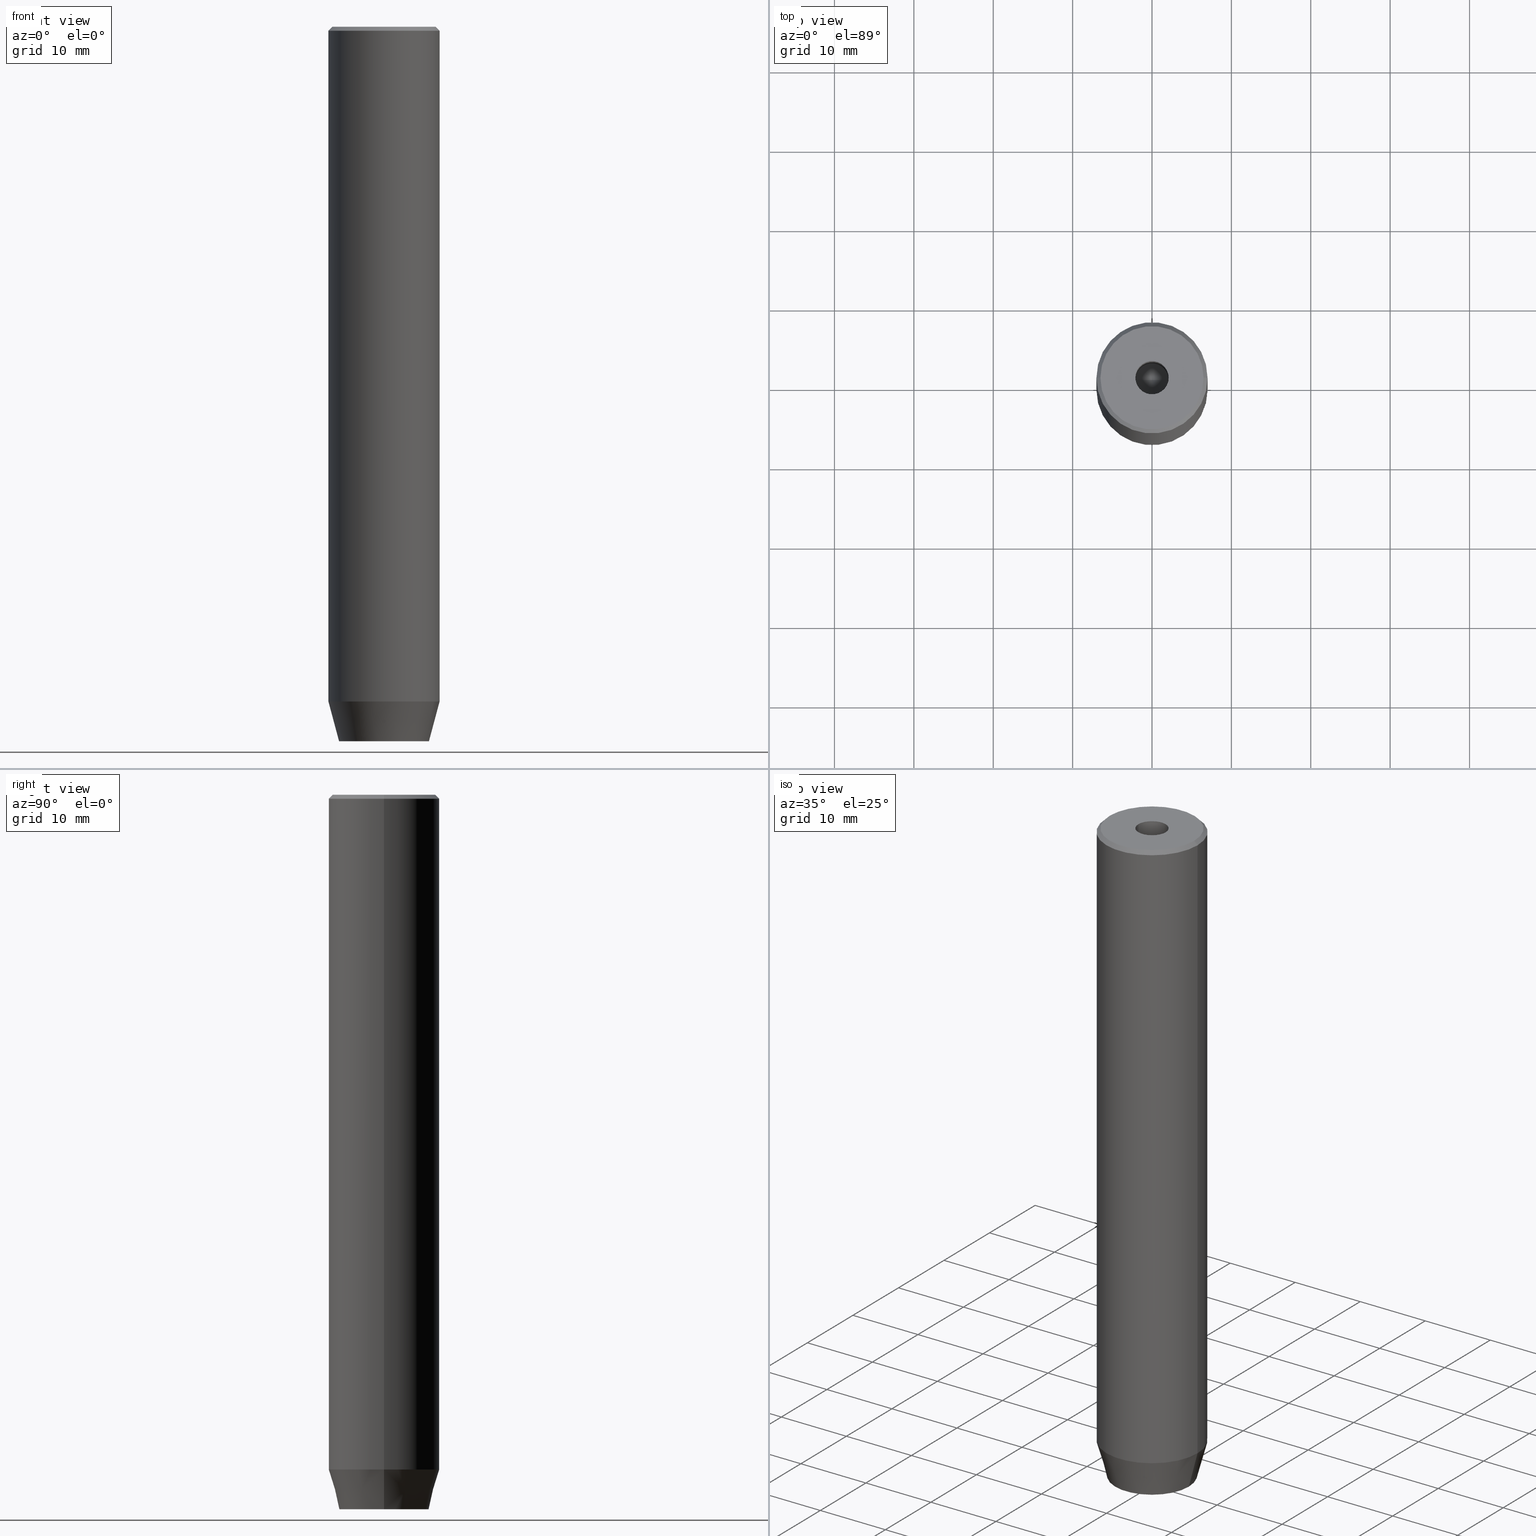
[diagram: canonical four-view strip — front | top / right | iso, engineering-drawing reading convention]
A machine part, canonical four-view strip (front | top / right | iso — engineering-drawing reading convention). The complete STEP part file that produces these views, byte-faithful:
ISO-10303-21;
HEADER;
FILE_DESCRIPTION (( 'STEP AP203' ),
    '1' );
FILE_NAME ('f0c6.STEP',
    '2024-01-02T21:53:27',
    ( '' ),
    ( '' ),
    'SwSTEP 2.0',
    'SolidWorks 2019',
    '' );
FILE_SCHEMA (( 'CONFIG_CONTROL_DESIGN' ));
ENDSEC;

DATA;
#1 = DIRECTION ( 'NONE',  ( -0.000000000000000000, -0.000000000000000000, 1.000000000000000000 ) ) ;
#2 = CALENDAR_DATE ( 2024, 2, 1 ) ;
#3 = CONICAL_SURFACE ( 'NONE', #431, 7.000000000000000000, 0.2617993877991499074 ) ;
#4 = LINE ( 'NONE', #284, #435 ) ;
#5 = ORIENTED_EDGE ( 'NONE', *, *, #337, .T. ) ;
#6 = DIRECTION ( 'NONE',  ( 1.000000000000000000, 0.000000000000000000, 0.000000000000000000 ) ) ;
#7 = EDGE_CURVE ( 'NONE', #307, #350, #265, .T. ) ;
#8 = DIRECTION ( 'NONE',  ( -0.000000000000000000, -0.000000000000000000, 1.000000000000000000 ) ) ;
#9 = FACE_OUTER_BOUND ( 'NONE', #238, .T. ) ;
#10 = CARTESIAN_POINT ( 'NONE',  ( 0.000000000000000000, 0.000000000000000000, -84.99999999999998579 ) ) ;
#11 = AXIS2_PLACEMENT_3D ( 'NONE', #229, #289, #6 ) ;
#12 = LOCAL_TIME ( 22, 53, 27.00000000000000000, #140 ) ;
#13 = EDGE_CURVE ( 'NONE', #433, #223, #358, .T. ) ;
#14 = ORIENTED_EDGE ( 'NONE', *, *, #274, .F. ) ;
#15 = EDGE_CURVE ( 'NONE', #526, #311, #515, .T. ) ;
#16 = PLANE ( 'NONE',  #305 ) ;
#17 = VECTOR ( 'NONE', #382, 1000.000000000000000 ) ;
#18 = CONICAL_SURFACE ( 'NONE', #222, 2.099999999999996980, 1.029744258676652535 ) ;
#19 = ORIENTED_EDGE ( 'NONE', *, *, #135, .F. ) ;
#20 = LINE ( 'NONE', #391, #148 ) ;
#21 = PRODUCT_DEFINITION_SHAPE ( 'NONE', 'NONE',  #398 ) ;
#22 = DIRECTION ( 'NONE',  ( 1.000000000000000000, 0.000000000000000000, 0.000000000000000000 ) ) ;
#23 = ADVANCED_FACE ( 'NONE', ( #439, #71 ), #253, .T. ) ;
#24 = CARTESIAN_POINT ( 'NONE',  ( 0.000000000000000000, 0.000000000000000000, 0.000000000000000000 ) ) ;
#25 = EDGE_LOOP ( 'NONE', ( #160, #475, #179, #199 ) ) ;
#26 = CARTESIAN_POINT ( 'NONE',  ( -1.084202172485504434E-16, 2.886751345948129543, -87.20000000000000284 ) ) ;
#27 = AXIS2_PLACEMENT_3D ( 'NONE', #400, #483, #427 ) ;
#28 = VERTEX_POINT ( 'NONE', #460 ) ;
#29 = VECTOR ( 'NONE', #109, 1000.000000000000114 ) ;
#30 = CARTESIAN_POINT ( 'NONE',  ( 7.000000000000000000, 0.000000000000000000, -84.99999999999998579 ) ) ;
#31 = ADVANCED_FACE ( 'NONE', ( #146 ), #3, .T. ) ;
#32 = COORDINATED_UNIVERSAL_TIME_OFFSET ( 1, 0, .AHEAD. ) ;
#33 = DIRECTION ( 'NONE',  ( -0.5000000000000001110, 0.8660254037844385966, 0.000000000000000000 ) ) ;
#34 = ORIENTED_EDGE ( 'NONE', *, *, #493, .F. ) ;
#35 = CC_DESIGN_PERSON_AND_ORGANIZATION_ASSIGNMENT ( #322, #88, ( #132 ) ) ;
#36 = DIRECTION ( 'NONE',  ( -0.4999999999999998890, -0.8660254037844387076, 0.000000000000000000 ) ) ;
#37 = VERTEX_POINT ( 'NONE', #469 ) ;
#38 = LINE ( 'NONE', #278, #543 ) ;
#39 = AXIS2_PLACEMENT_3D ( 'NONE', #510, #381, #46 ) ;
#40 = EDGE_CURVE ( 'NONE', #448, #223, #80, .T. ) ;
#41 =( GEOMETRIC_REPRESENTATION_CONTEXT ( 3 ) GLOBAL_UNCERTAINTY_ASSIGNED_CONTEXT ( ( #519 ) ) GLOBAL_UNIT_ASSIGNED_CONTEXT ( ( #386, #191, #142 ) ) REPRESENTATION_CONTEXT ( 'NONE', 'WORKASPACE' ) );
#42 = CARTESIAN_POINT ( 'NONE',  ( -7.000000000000000000, 8.572527594031473190E-16, -84.99999999999998579 ) ) ;
#43 = EDGE_LOOP ( 'NONE', ( #485, #512, #484, #131 ) ) ;
#44 = APPROVAL ( #45, 'NEUR�EN�' ) ;
#45 = APPROVAL_STATUS ( 'not_yet_approved' ) ;
#46 = DIRECTION ( 'NONE',  ( 1.000000000000000000, 0.000000000000000000, 0.000000000000000000 ) ) ;
#47 = DIRECTION ( 'NONE',  ( 1.000000000000000000, 0.000000000000000000, 0.000000000000000000 ) ) ;
#48 = DIRECTION ( 'NONE',  ( 0.000000000000000000, 0.000000000000000000, -1.000000000000000000 ) ) ;
#49 = CARTESIAN_POINT ( 'NONE',  ( 0.000000000000000000, 0.000000000000000000, -15.00000000000000000 ) ) ;
#50 = CIRCLE ( 'NONE', #525, 2.099999999999996980 ) ;
#51 = CYLINDRICAL_SURFACE ( 'NONE', #11, 2.099999999999997868 ) ;
#52 = SHAPE_DEFINITION_REPRESENTATION ( #21, #407 ) ;
#53 = CARTESIAN_POINT ( 'NONE',  ( -2.500000000000000444, 0.000000000000000000, -90.00000000000000000 ) ) ;
#54 = ADVANCED_FACE ( 'NONE', ( #465 ), #64, .T. ) ;
#55 = DIRECTION ( 'NONE',  ( -1.000000000000000000, 0.000000000000000000, 0.000000000000000000 ) ) ;
#56 = FACE_OUTER_BOUND ( 'NONE', #25, .T. ) ;
#57 = DIRECTION ( 'NONE',  ( 0.000000000000000000, 0.000000000000000000, -1.000000000000000000 ) ) ;
#58 = DIRECTION ( 'NONE',  ( -0.000000000000000000, -0.000000000000000000, 1.000000000000000000 ) ) ;
#59 = LINE ( 'NONE', #556, #29 ) ;
#60 = ORIENTED_EDGE ( 'NONE', *, *, #539, .F. ) ;
#61 = CARTESIAN_POINT ( 'NONE',  ( 0.000000000000000000, -2.886751345948128211, -90.00000000000000000 ) ) ;
#62 = EDGE_CURVE ( 'NONE', #262, #153, #401, .T. ) ;
#63 = COORDINATED_UNIVERSAL_TIME_OFFSET ( 1, 0, .AHEAD. ) ;
#64 = CONICAL_SURFACE ( 'NONE', #348, 6.499999999999992006, 0.7853981633974380649 ) ;
#65 = LINE ( 'NONE', #53, #294 ) ;
#66 = EDGE_LOOP ( 'NONE', ( #34, #285 ) ) ;
#67 = ORIENTED_EDGE ( 'NONE', *, *, #7, .F. ) ;
#68 = CARTESIAN_POINT ( 'NONE',  ( -3.982994051648894933E-15, 0.000000000000000000, -16.26180729995787644 ) ) ;
#69 = ORIENTED_EDGE ( 'NONE', *, *, #499, .F. ) ;
#70 = LINE ( 'NONE', #299, #174 ) ;
#71 = FACE_OUTER_BOUND ( 'NONE', #585, .T. ) ;
#72 = EDGE_CURVE ( 'NONE', #411, #209, #231, .T. ) ;
#73 = EDGE_LOOP ( 'NONE', ( #201, #482, #67, #576 ) ) ;
#74 = CYLINDRICAL_SURFACE ( 'NONE', #508, 7.000000000000000000 ) ;
#75 = CC_DESIGN_PERSON_AND_ORGANIZATION_ASSIGNMENT ( #224, #373, ( #132 ) ) ;
#76 = ORIENTED_EDGE ( 'NONE', *, *, #403, .F. ) ;
#77 = DIRECTION ( 'NONE',  ( -0.000000000000000000, 0.000000000000000000, -1.000000000000000000 ) ) ;
#78 = EDGE_CURVE ( 'NONE', #136, #258, #198, .T. ) ;
#79 = CARTESIAN_POINT ( 'NONE',  ( 0.000000000000000000, 0.000000000000000000, -1.990051048614449116E-16 ) ) ;
#80 = CIRCLE ( 'NONE', #251, 7.000000000000000000 ) ;
#81 = ORIENTED_EDGE ( 'NONE', *, *, #143, .T. ) ;
#82 = ORIENTED_EDGE ( 'NONE', *, *, #230, .F. ) ;
#83 = VERTEX_POINT ( 'NONE', #441 ) ;
#84 = CARTESIAN_POINT ( 'NONE',  ( 2.500000000000000000, -1.443375672974064106, -90.00000000000000000 ) ) ;
#85 = COORDINATED_UNIVERSAL_TIME_OFFSET ( 1, 0, .AHEAD. ) ;
#86 = ADVANCED_FACE ( 'NONE', ( #560 ), #74, .T. ) ;
#87 = ORIENTED_EDGE ( 'NONE', *, *, #78, .F. ) ;
#88 = PERSON_AND_ORGANIZATION_ROLE ( 'creator' ) ;
#89 = CARTESIAN_POINT ( 'NONE',  ( -1.250000000000000444, 2.165063509461097269, -87.20000000000000284 ) ) ;
#90 = LINE ( 'NONE', #538, #102 ) ;
#91 = EDGE_CURVE ( 'NONE', #413, #83, #397, .T. ) ;
#92 = VECTOR ( 'NONE', #95, 1000.000000000000000 ) ;
#93 = CARTESIAN_POINT ( 'NONE',  ( -2.099999999999996980, 2.571758278209438013E-16, -15.00000000000000000 ) ) ;
#94 = CARTESIAN_POINT ( 'NONE',  ( 1.249999999999999778, -2.165063509461096380, -87.20000000000000284 ) ) ;
#95 = DIRECTION ( 'NONE',  ( -0.000000000000000000, -0.000000000000000000, -1.000000000000000000 ) ) ;
#96 = VERTEX_POINT ( 'NONE', #61 ) ;
#97 = CARTESIAN_POINT ( 'NONE',  ( 0.000000000000000000, 0.000000000000000000, -84.99999999999998579 ) ) ;
#98 = DIRECTION ( 'NONE',  ( -0.000000000000000000, -0.000000000000000000, 1.000000000000000000 ) ) ;
#99 = EDGE_LOOP ( 'NONE', ( #81, #177, #249, #207 ) ) ;
#100 = CARTESIAN_POINT ( 'NONE',  ( 5.660254037844382857, 0.000000000000000000, -90.00000000000000000 ) ) ;
#101 = CARTESIAN_POINT ( 'NONE',  ( 0.000000000000000000, 0.000000000000000000, -0.5000000000000186517 ) ) ;
#102 = VECTOR ( 'NONE', #272, 1000.000000000000000 ) ;
#103 = DIRECTION ( 'NONE',  ( -0.000000000000000000, -0.000000000000000000, -1.000000000000000000 ) ) ;
#104 = CARTESIAN_POINT ( 'NONE',  ( 0.000000000000000000, 0.000000000000000000, -84.99999999999998579 ) ) ;
#105 = SECURITY_CLASSIFICATION_LEVEL ( 'unclassified' ) ;
#106 = FACE_OUTER_BOUND ( 'NONE', #173, .T. ) ;
#107 = DIRECTION ( 'NONE',  ( 1.000000000000000000, 0.000000000000000000, 0.000000000000000000 ) ) ;
#108 = ORIENTED_EDGE ( 'NONE', *, *, #337, .F. ) ;
#109 = DIRECTION ( 'NONE',  ( -0.8660254037844387076, 0.4999999999999998890, 0.000000000000000000 ) ) ;
#110 = MECHANICAL_CONTEXT ( 'NONE', #182, 'mechanical' ) ;
#111 = ORIENTED_EDGE ( 'NONE', *, *, #91, .T. ) ;
#112 = CIRCLE ( 'NONE', #365, 2.099999999999998757 ) ;
#113 = CONICAL_SURFACE ( 'NONE', #446, 6.499999999999992006, 0.7853981633974380649 ) ;
#114 = PERSON ( 'NEUR�EN�', 'NEUR�EN�', 'NEUR�EN�', ('NEUR�EN�'), ('NEUR�EN�'), ('NEUR�EN�') ) ;
#115 = ORIENTED_EDGE ( 'NONE', *, *, #354, .T. ) ;
#116 = CARTESIAN_POINT ( 'NONE',  ( 7.000000000000000000, 0.000000000000000000, -84.99999999999998579 ) ) ;
#117 = EDGE_CURVE ( 'NONE', #153, #262, #420, .T. ) ;
#118 = DIRECTION ( 'NONE',  ( -0.7071067811865402453, 0.000000000000000000, -0.7071067811865549002 ) ) ;
#119 = DIRECTION ( 'NONE',  ( 0.000000000000000000, 0.000000000000000000, -1.000000000000000000 ) ) ;
#120 = ORIENTED_EDGE ( 'NONE', *, *, #429, .F. ) ;
#121 = DIRECTION ( 'NONE',  ( 0.000000000000000000, -1.000000000000000000, 0.000000000000000000 ) ) ;
#122 = CONICAL_SURFACE ( 'NONE', #139, 2.099999999999996980, 1.029744258676652535 ) ;
#123 = VECTOR ( 'NONE', #574, 1000.000000000000114 ) ;
#124 = DIRECTION ( 'NONE',  ( 0.000000000000000000, 0.000000000000000000, -1.000000000000000000 ) ) ;
#125 = CARTESIAN_POINT ( 'NONE',  ( -2.500000000000000444, 0.000000000000000000, -87.20000000000000284 ) ) ;
#126 = DESIGN_CONTEXT ( 'detailed design', #377, 'design' ) ;
#127 = DIRECTION ( 'NONE',  ( -0.000000000000000000, -0.000000000000000000, 1.000000000000000000 ) ) ;
#128 = ORIENTED_EDGE ( 'NONE', *, *, #15, .F. ) ;
#129 = CARTESIAN_POINT ( 'NONE',  ( -2.500000000000000444, 1.443375672974064772, -87.20000000000000284 ) ) ;
#130 = CIRCLE ( 'NONE', #561, 6.499999999999992006 ) ;
#131 = ORIENTED_EDGE ( 'NONE', *, *, #40, .F. ) ;
#132 = PRODUCT_DEFINITION_FORMATION_WITH_SPECIFIED_SOURCE ( 'LIBOVOLN�', '', #518, .NOT_KNOWN. ) ;
#133 = CARTESIAN_POINT ( 'NONE',  ( 2.500000000000000000, -1.443375672974064106, -87.20000000000000284 ) ) ;
#134 = APPROVAL_DATE_TIME ( #533, #557 ) ;
#135 = EDGE_CURVE ( 'NONE', #310, #433, #568, .T. ) ;
#136 = VERTEX_POINT ( 'NONE', #68 ) ;
#137 = DIRECTION ( 'NONE',  ( -0.8660254037844385966, 0.5000000000000001110, 0.000000000000000000 ) ) ;
#138 = APPROVAL_STATUS ( 'not_yet_approved' ) ;
#139 = AXIS2_PLACEMENT_3D ( 'NONE', #49, #233, #419 ) ;
#140 = COORDINATED_UNIVERSAL_TIME_OFFSET ( 1, 0, .AHEAD. ) ;
#141 = DIRECTION ( 'NONE',  ( -0.000000000000000000, -0.000000000000000000, -1.000000000000000000 ) ) ;
#142 =( NAMED_UNIT ( * ) SI_UNIT ( $, .STERADIAN. ) SOLID_ANGLE_UNIT ( ) );
#143 = EDGE_CURVE ( 'NONE', #368, #96, #20, .T. ) ;
#144 = DIRECTION ( 'NONE',  ( 1.000000000000000000, 0.000000000000000000, 0.000000000000000000 ) ) ;
#145 = ORIENTED_EDGE ( 'NONE', *, *, #62, .T. ) ;
#146 = FACE_OUTER_BOUND ( 'NONE', #396, .T. ) ;
#147 = DIRECTION ( 'NONE',  ( -0.000000000000000000, -0.000000000000000000, 1.000000000000000000 ) ) ;
#148 = VECTOR ( 'NONE', #564, 999.9999999999998863 ) ;
#149 = PERSON_AND_ORGANIZATION ( #114, #562 ) ;
#150 = AXIS2_PLACEMENT_3D ( 'NONE', #268, #455, #137 ) ;
#151 = LINE ( 'NONE', #93, #17 ) ;
#152 = EDGE_CURVE ( 'NONE', #209, #302, #161, .T. ) ;
#153 = VERTEX_POINT ( 'NONE', #116 ) ;
#154 = CARTESIAN_POINT ( 'NONE',  ( 2.500000000000000000, 1.443375672974064328, -90.00000000000000000 ) ) ;
#155 = EDGE_CURVE ( 'NONE', #352, #169, #70, .T. ) ;
#156 = ORIENTED_EDGE ( 'NONE', *, *, #218, .F. ) ;
#157 = CARTESIAN_POINT ( 'NONE',  ( 0.000000000000000000, 0.000000000000000000, 0.000000000000000000 ) ) ;
#158 = ORIENTED_EDGE ( 'NONE', *, *, #552, .F. ) ;
#159 = DIRECTION ( 'NONE',  ( 0.8571673007021113344, 0.000000000000000000, 0.5150380749100558209 ) ) ;
#160 = ORIENTED_EDGE ( 'NONE', *, *, #208, .F. ) ;
#161 = LINE ( 'NONE', #351, #486 ) ;
#162 = ADVANCED_FACE ( 'NONE', ( #393 ), #250, .F. ) ;
#163 = ORIENTED_EDGE ( 'NONE', *, *, #7, .T. ) ;
#164 = CC_DESIGN_PERSON_AND_ORGANIZATION_ASSIGNMENT ( #500, #416, ( #398 ) ) ;
#165 = ORIENTED_EDGE ( 'NONE', *, *, #451, .T. ) ;
#166 = ADVANCED_FACE ( 'NONE', ( #259 ), #443, .F. ) ;
#167 = CC_DESIGN_APPROVAL ( #557, ( #132 ) ) ;
#168 = CARTESIAN_POINT ( 'NONE',  ( 2.099999999999997868, 0.000000000000000000, 0.000000000000000000 ) ) ;
#169 = VERTEX_POINT ( 'NONE', #26 ) ;
#170 = DIRECTION ( 'NONE',  ( 1.000000000000000000, 0.000000000000000000, -0.000000000000000000 ) ) ;
#171 = CYLINDRICAL_SURFACE ( 'NONE', #463, 7.000000000000000000 ) ;
#172 = FACE_OUTER_BOUND ( 'NONE', #99, .T. ) ;
#173 = EDGE_LOOP ( 'NONE', ( #353, #255, #165, #520 ) ) ;
#174 = VECTOR ( 'NONE', #438, 1000.000000000000000 ) ;
#175 = DIRECTION ( 'NONE',  ( 0.000000000000000000, 1.000000000000000000, 0.000000000000000000 ) ) ;
#176 = VECTOR ( 'NONE', #467, 1000.000000000000000 ) ;
#177 = ORIENTED_EDGE ( 'NONE', *, *, #394, .F. ) ;
#178 = ADVANCED_FACE ( 'NONE', ( #308 ), #210, .T. ) ;
#179 = ORIENTED_EDGE ( 'NONE', *, *, #254, .T. ) ;
#180 = PLANE ( 'NONE',  #580 ) ;
#181 = ORIENTED_EDGE ( 'NONE', *, *, #274, .T. ) ;
#182 = APPLICATION_CONTEXT ( 'configuration controlled 3d designs of mechanical parts and assemblies' ) ;
#183 = CARTESIAN_POINT ( 'NONE',  ( 6.499999999999992006, 7.960204194457785616E-16, 0.000000000000000000 ) ) ;
#184 = CARTESIAN_POINT ( 'NONE',  ( -2.500000000000000444, 1.443375672974064772, -90.00000000000000000 ) ) ;
#185 = AXIS2_PLACEMENT_3D ( 'NONE', #300, #477, #355 ) ;
#186 = VECTOR ( 'NONE', #290, 1000.000000000000000 ) ;
#187 = CARTESIAN_POINT ( 'NONE',  ( -2.500000000000000444, -1.443375672974064328, -90.00000000000000000 ) ) ;
#188 = PRODUCT_RELATED_PRODUCT_CATEGORY ( 'detail', '', ( #518 ) ) ;
#189 = CARTESIAN_POINT ( 'NONE',  ( 0.000000000000000000, 0.000000000000000000, 0.000000000000000000 ) ) ;
#190 = CARTESIAN_POINT ( 'NONE',  ( 0.000000000000000000, 0.000000000000000000, 0.000000000000000000 ) ) ;
#191 =( NAMED_UNIT ( * ) PLANE_ANGLE_UNIT ( ) SI_UNIT ( $, .RADIAN. ) );
#192 = DATE_TIME_ROLE ( 'classification_date' ) ;
#193 = LINE ( 'NONE', #430, #376 ) ;
#194 = LINE ( 'NONE', #464, #176 ) ;
#195 = ORIENTED_EDGE ( 'NONE', *, *, #117, .F. ) ;
#196 = CIRCLE ( 'NONE', #437, 2.099999999999996980 ) ;
#197 = CARTESIAN_POINT ( 'NONE',  ( 0.000000000000000000, 2.886751345948129099, -90.00000000000000000 ) ) ;
#198 = LINE ( 'NONE', #296, #541 ) ;
#199 = ORIENTED_EDGE ( 'NONE', *, *, #451, .F. ) ;
#200 = EDGE_CURVE ( 'NONE', #433, #310, #130, .T. ) ;
#201 = ORIENTED_EDGE ( 'NONE', *, *, #403, .T. ) ;
#202 = DIRECTION ( 'NONE',  ( -0.000000000000000000, -0.000000000000000000, 1.000000000000000000 ) ) ;
#203 = AXIS2_PLACEMENT_3D ( 'NONE', #10, #379, #501 ) ;
#204 = ADVANCED_FACE ( 'NONE', ( #9 ), #122, .F. ) ;
#205 = ORIENTED_EDGE ( 'NONE', *, *, #135, .T. ) ;
#206 = DIRECTION ( 'NONE',  ( 0.8660254037844385966, 0.5000000000000001110, 0.000000000000000000 ) ) ;
#207 = ORIENTED_EDGE ( 'NONE', *, *, #532, .T. ) ;
#208 = EDGE_CURVE ( 'NONE', #37, #258, #50, .T. ) ;
#209 = VERTEX_POINT ( 'NONE', #197 ) ;
#210 = PLANE ( 'NONE',  #27 ) ;
#211 = CC_DESIGN_DATE_AND_TIME_ASSIGNMENT ( #581, #586, ( #398 ) ) ;
#212 = AXIS2_PLACEMENT_3D ( 'NONE', #97, #8, #414 ) ;
#213 = CIRCLE ( 'NONE', #237, 2.099999999999998757 ) ;
#214 = ORIENTED_EDGE ( 'NONE', *, *, #552, .T. ) ;
#215 = CARTESIAN_POINT ( 'NONE',  ( -2.099999999999997868, 2.571758278209438999E-16, 0.000000000000000000 ) ) ;
#216 = ORIENTED_EDGE ( 'NONE', *, *, #246, .T. ) ;
#217 = DIRECTION ( 'NONE',  ( 0.8660254037844387076, -0.4999999999999998890, 0.000000000000000000 ) ) ;
#218 = EDGE_CURVE ( 'NONE', #136, #37, #151, .T. ) ;
#219 = DIRECTION ( 'NONE',  ( 0.2588190451025211836, 0.000000000000000000, 0.9659258262890680902 ) ) ;
#220 = CLOSED_SHELL ( 'NONE', ( #315, #468, #54, #264, #86, #23, #293, #422, #31, #444, #370, #166, #481, #456, #162, #385, #178, #204, #325 ) ) ;
#221 = DIRECTION ( 'NONE',  ( -0.000000000000000000, -0.000000000000000000, 1.000000000000000000 ) ) ;
#222 = AXIS2_PLACEMENT_3D ( 'NONE', #534, #1, #494 ) ;
#223 = VERTEX_POINT ( 'NONE', #240 ) ;
#224 = PERSON_AND_ORGANIZATION ( #114, #562 ) ;
#225 = LINE ( 'NONE', #328, #92 ) ;
#226 = EDGE_LOOP ( 'NONE', ( #572, #459, #76, #330, #158, #471 ) ) ;
#227 = CARTESIAN_POINT ( 'NONE',  ( 0.000000000000000000, 0.000000000000000000, 0.000000000000000000 ) ) ;
#228 = APPROVAL_ROLE ( '' ) ;
#229 = CARTESIAN_POINT ( 'NONE',  ( 0.000000000000000000, 0.000000000000000000, 0.000000000000000000 ) ) ;
#230 = EDGE_CURVE ( 'NONE', #413, #302, #193, .T. ) ;
#231 = LINE ( 'NONE', #523, #445 ) ;
#232 = DIRECTION ( 'NONE',  ( 1.000000000000000000, 0.000000000000000000, 0.000000000000000000 ) ) ;
#233 = DIRECTION ( 'NONE',  ( -0.000000000000000000, -0.000000000000000000, 1.000000000000000000 ) ) ;
#234 = DATE_AND_TIME ( #462, #498 ) ;
#235 = PERSON_AND_ORGANIZATION ( #114, #562 ) ;
#236 = AXIS2_PLACEMENT_3D ( 'NONE', #303, #480, #256 ) ;
#237 = AXIS2_PLACEMENT_3D ( 'NONE', #79, #578, #47 ) ;
#238 = EDGE_LOOP ( 'NONE', ( #156, #389, #406 ) ) ;
#239 = LINE ( 'NONE', #550, #271 ) ;
#240 = CARTESIAN_POINT ( 'NONE',  ( -7.000000000000000000, 8.572527594031473190E-16, -0.5000000000000186517 ) ) ;
#241 = EDGE_LOOP ( 'NONE', ( #214, #318, #579, #452 ) ) ;
#242 = VECTOR ( 'NONE', #121, 1000.000000000000000 ) ;
#243 = APPROVAL ( #138, 'NEUR�EN�' ) ;
#244 = CC_DESIGN_APPROVAL ( #243, ( #252 ) ) ;
#245 = ORIENTED_EDGE ( 'NONE', *, *, #559, .T. ) ;
#246 = EDGE_CURVE ( 'NONE', #153, #448, #4, .T. ) ;
#247 = VERTEX_POINT ( 'NONE', #187 ) ;
#248 = CC_DESIGN_PERSON_AND_ORGANIZATION_ASSIGNMENT ( #149, #506, ( #252 ) ) ;
#249 = ORIENTED_EDGE ( 'NONE', *, *, #346, .F. ) ;
#250 = PLANE ( 'NONE',  #530 ) ;
#251 = AXIS2_PLACEMENT_3D ( 'NONE', #101, #286, #425 ) ;
#252 = SECURITY_CLASSIFICATION ( '', '', #105 ) ;
#253 = PLANE ( 'NONE',  #338 ) ;
#254 = EDGE_CURVE ( 'NONE', #399, #28, #112, .T. ) ;
#255 = ORIENTED_EDGE ( 'NONE', *, *, #434, .F. ) ;
#256 = DIRECTION ( 'NONE',  ( 1.000000000000000000, 0.000000000000000000, 0.000000000000000000 ) ) ;
#257 = ORIENTED_EDGE ( 'NONE', *, *, #72, .T. ) ;
#258 = VERTEX_POINT ( 'NONE', #375 ) ;
#259 = FACE_OUTER_BOUND ( 'NONE', #387, .T. ) ;
#260 = DIRECTION ( 'NONE',  ( 1.000000000000000000, 0.000000000000000000, 0.000000000000000000 ) ) ;
#261 = ORIENTED_EDGE ( 'NONE', *, *, #499, .T. ) ;
#262 = VERTEX_POINT ( 'NONE', #503 ) ;
#263 = FACE_OUTER_BOUND ( 'NONE', #404, .T. ) ;
#264 = ADVANCED_FACE ( 'NONE', ( #417 ), #453, .T. ) ;
#265 = LINE ( 'NONE', #449, #316 ) ;
#266 = DIRECTION ( 'NONE',  ( 0.8660254037844385966, 0.4999999999999999445, 0.000000000000000000 ) ) ;
#267 = ORIENTED_EDGE ( 'NONE', *, *, #208, .T. ) ;
#268 = CARTESIAN_POINT ( 'NONE',  ( 1.250000000000000222, 2.165063509461096825, -87.20000000000000284 ) ) ;
#269 = CC_DESIGN_PERSON_AND_ORGANIZATION_ASSIGNMENT ( #388, #282, ( #518 ) ) ;
#270 = CARTESIAN_POINT ( 'NONE',  ( -2.500000000000000444, 1.443375672974064772, -87.20000000000000284 ) ) ;
#271 = VECTOR ( 'NONE', #58, 1000.000000000000000 ) ;
#272 = DIRECTION ( 'NONE',  ( 0.000000000000000000, -1.000000000000000000, 0.000000000000000000 ) ) ;
#273 = LOCAL_TIME ( 22, 53, 27.00000000000000000, #63 ) ;
#274 = EDGE_CURVE ( 'NONE', #169, #209, #336, .T. ) ;
#275 = APPROVAL_DATE_TIME ( #536, #44 ) ;
#276 = CARTESIAN_POINT ( 'NONE',  ( 0.000000000000000000, -2.886751345948128211, -87.20000000000000284 ) ) ;
#277 = DIRECTION ( 'NONE',  ( -0.000000000000000000, -0.000000000000000000, 1.000000000000000000 ) ) ;
#278 = CARTESIAN_POINT ( 'NONE',  ( -2.500000000000000444, 0.000000000000000000, -87.20000000000000284 ) ) ;
#279 = EDGE_LOOP ( 'NONE', ( #332, #364, #111, #298, #163, #283 ) ) ;
#280 = PERSON_AND_ORGANIZATION ( #114, #562 ) ;
#281 = PLANE ( 'NONE',  #327 ) ;
#282 = PERSON_AND_ORGANIZATION_ROLE ( 'design_owner' ) ;
#283 = ORIENTED_EDGE ( 'NONE', *, *, #517, .T. ) ;
#284 = CARTESIAN_POINT ( 'NONE',  ( 7.000000000000000000, 0.000000000000000000, 0.000000000000000000 ) ) ;
#285 = ORIENTED_EDGE ( 'NONE', *, *, #254, .F. ) ;
#286 = DIRECTION ( 'NONE',  ( 0.000000000000000000, 0.000000000000000000, -1.000000000000000000 ) ) ;
#287 = DATE_AND_TIME ( #2, #273 ) ;
#288 = DIRECTION ( 'NONE',  ( -0.000000000000000000, -0.000000000000000000, 1.000000000000000000 ) ) ;
#289 = DIRECTION ( 'NONE',  ( -0.000000000000000000, -0.000000000000000000, 1.000000000000000000 ) ) ;
#290 = DIRECTION ( 'NONE',  ( -0.000000000000000000, -0.000000000000000000, -1.000000000000000000 ) ) ;
#291 = ORIENTED_EDGE ( 'NONE', *, *, #380, .F. ) ;
#292 = VECTOR ( 'NONE', #118, 1000.000000000000114 ) ;
#293 = ADVANCED_FACE ( 'NONE', ( #551, #384 ), #281, .T. ) ;
#294 = VECTOR ( 'NONE', #421, 1000.000000000000000 ) ;
#295 = ORIENTED_EDGE ( 'NONE', *, *, #152, .T. ) ;
#296 = CARTESIAN_POINT ( 'NONE',  ( 2.099999999999996980, 0.000000000000000000, -15.00000000000000000 ) ) ;
#297 = DIRECTION ( 'NONE',  ( 0.5000000000000000000, -0.8660254037844387076, 0.000000000000000000 ) ) ;
#298 = ORIENTED_EDGE ( 'NONE', *, *, #346, .T. ) ;
#299 = CARTESIAN_POINT ( 'NONE',  ( -1.250000000000000444, 2.165063509461097269, -87.20000000000000284 ) ) ;
#300 = CARTESIAN_POINT ( 'NONE',  ( 0.000000000000000000, 0.000000000000000000, -90.00000000000000000 ) ) ;
#301 = LINE ( 'NONE', #168, #454 ) ;
#302 = VERTEX_POINT ( 'NONE', #154 ) ;
#303 = CARTESIAN_POINT ( 'NONE',  ( 0.000000000000000000, 0.000000000000000000, -84.99999999999998579 ) ) ;
#304 = VECTOR ( 'NONE', #103, 1000.000000000000000 ) ;
#305 = AXIS2_PLACEMENT_3D ( 'NONE', #349, #297, #266 ) ;
#306 = DIRECTION ( 'NONE',  ( -1.000000000000000000, 0.000000000000000000, -0.000000000000000000 ) ) ;
#307 = VERTEX_POINT ( 'NONE', #276 ) ;
#308 = FACE_OUTER_BOUND ( 'NONE', #279, .T. ) ;
#309 = MANIFOLD_SOLID_BREP ( 'Vrt�k z�vitn�ku pro M5 z�vit1', #220 ) ;
#310 = VERTEX_POINT ( 'NONE', #587 ) ;
#311 = VERTEX_POINT ( 'NONE', #100 ) ;
#312 = DIRECTION ( 'NONE',  ( -0.8660254037844387076, -0.5000000000000001110, 0.000000000000000000 ) ) ;
#313 = CARTESIAN_POINT ( 'NONE',  ( -1.249999999999999556, -2.165063509461096825, -87.20000000000000284 ) ) ;
#314 = ORIENTED_EDGE ( 'NONE', *, *, #117, .T. ) ;
#315 = ADVANCED_FACE ( 'NONE', ( #56 ), #461, .F. ) ;
#316 = VECTOR ( 'NONE', #408, 1000.000000000000114 ) ;
#317 = APPROVAL_PERSON_ORGANIZATION ( #235, #44, #228 ) ;
#318 = ORIENTED_EDGE ( 'NONE', *, *, #532, .F. ) ;
#319 = CALENDAR_DATE ( 2024, 2, 1 ) ;
#320 = CARTESIAN_POINT ( 'NONE',  ( 0.000000000000000000, 0.000000000000000000, -90.00000000000000000 ) ) ;
#321 = ORIENTED_EDGE ( 'NONE', *, *, #40, .T. ) ;
#322 = PERSON_AND_ORGANIZATION ( #114, #562 ) ;
#323 = CARTESIAN_POINT ( 'NONE',  ( -2.500000000000000444, -1.443375672974064328, -87.20000000000000284 ) ) ;
#324 = DIRECTION ( 'NONE',  ( 1.000000000000000000, 0.000000000000000000, 0.000000000000000000 ) ) ;
#325 = ADVANCED_FACE ( 'NONE', ( #106 ), #51, .F. ) ;
#326 = ORIENTED_EDGE ( 'NONE', *, *, #218, .T. ) ;
#327 = AXIS2_PLACEMENT_3D ( 'NONE', #190, #344, #340 ) ;
#328 = CARTESIAN_POINT ( 'NONE',  ( -2.500000000000000444, -1.443375672974064328, -87.20000000000000284 ) ) ;
#329 = VECTOR ( 'NONE', #412, 1000.000000000000000 ) ;
#330 = ORIENTED_EDGE ( 'NONE', *, *, #143, .F. ) ;
#331 = DIRECTION ( 'NONE',  ( -0.000000000000000000, -0.000000000000000000, 1.000000000000000000 ) ) ;
#332 = ORIENTED_EDGE ( 'NONE', *, *, #155, .T. ) ;
#333 = DIRECTION ( 'NONE',  ( 1.000000000000000000, 0.000000000000000000, 0.000000000000000000 ) ) ;
#334 = EDGE_LOOP ( 'NONE', ( #347, #205 ) ) ;
#335 = DIRECTION ( 'NONE',  ( -0.000000000000000000, -0.000000000000000000, 1.000000000000000000 ) ) ;
#336 = LINE ( 'NONE', #548, #304 ) ;
#337 = EDGE_CURVE ( 'NONE', #262, #223, #239, .T. ) ;
#338 = AXIS2_PLACEMENT_3D ( 'NONE', #524, #124, #306 ) ;
#339 = CIRCLE ( 'NONE', #390, 5.660254037844382857 ) ;
#340 = DIRECTION ( 'NONE',  ( 1.000000000000000000, 0.000000000000000000, 0.000000000000000000 ) ) ;
#341 = EDGE_CURVE ( 'NONE', #310, #448, #507, .T. ) ;
#342 = CARTESIAN_POINT ( 'NONE',  ( 0.000000000000000000, 0.000000000000000000, 0.000000000000000000 ) ) ;
#343 = ORIENTED_EDGE ( 'NONE', *, *, #62, .F. ) ;
#344 = DIRECTION ( 'NONE',  ( 0.000000000000000000, -0.000000000000000000, 1.000000000000000000 ) ) ;
#345 = DIRECTION ( 'NONE',  ( 1.000000000000000000, 0.000000000000000000, 0.000000000000000000 ) ) ;
#346 = EDGE_CURVE ( 'NONE', #83, #307, #573, .T. ) ;
#347 = ORIENTED_EDGE ( 'NONE', *, *, #200, .T. ) ;
#348 = AXIS2_PLACEMENT_3D ( 'NONE', #227, #57, #55 ) ;
#349 = CARTESIAN_POINT ( 'NONE',  ( 1.249999999999999778, -2.165063509461096380, -87.20000000000000284 ) ) ;
#350 = VERTEX_POINT ( 'NONE', #323 ) ;
#351 = CARTESIAN_POINT ( 'NONE',  ( 1.250000000000000222, 2.165063509461096825, -90.00000000000000000 ) ) ;
#352 = VERTEX_POINT ( 'NONE', #270 ) ;
#353 = ORIENTED_EDGE ( 'NONE', *, *, #362, .F. ) ;
#354 = EDGE_CURVE ( 'NONE', #311, #153, #489, .T. ) ;
#355 = DIRECTION ( 'NONE',  ( 1.000000000000000000, 0.000000000000000000, 0.000000000000000000 ) ) ;
#356 = VECTOR ( 'NONE', #492, 1000.000000000000114 ) ;
#357 = CIRCLE ( 'NONE', #479, 7.000000000000000000 ) ;
#358 = LINE ( 'NONE', #577, #292 ) ;
#359 = ORIENTED_EDGE ( 'NONE', *, *, #539, .T. ) ;
#360 = DIRECTION ( 'NONE',  ( 0.000000000000000000, 0.000000000000000000, 1.000000000000000000 ) ) ;
#361 = DIRECTION ( 'NONE',  ( -0.000000000000000000, -0.000000000000000000, 1.000000000000000000 ) ) ;
#362 = EDGE_CURVE ( 'NONE', #37, #399, #582, .T. ) ;
#363 = LINE ( 'NONE', #129, #329 ) ;
#364 = ORIENTED_EDGE ( 'NONE', *, *, #575, .T. ) ;
#365 = AXIS2_PLACEMENT_3D ( 'NONE', #555, #331, #333 ) ;
#366 = VECTOR ( 'NONE', #277, 1000.000000000000000 ) ;
#367 = CARTESIAN_POINT ( 'NONE',  ( -5.660254037844382857, 7.752169791919238770E-16, -90.00000000000000000 ) ) ;
#368 = VERTEX_POINT ( 'NONE', #84 ) ;
#369 = CALENDAR_DATE ( 2024, 2, 1 ) ;
#370 = ADVANCED_FACE ( 'NONE', ( #405 ), #180, .F. ) ;
#371 = LINE ( 'NONE', #133, #553 ) ;
#372 = ORIENTED_EDGE ( 'NONE', *, *, #341, .T. ) ;
#373 = PERSON_AND_ORGANIZATION_ROLE ( 'design_supplier' ) ;
#374 = PLANE ( 'NONE',  #150 ) ;
#375 = CARTESIAN_POINT ( 'NONE',  ( 2.099999999999996980, 0.000000000000000000, -15.00000000000000000 ) ) ;
#376 = VECTOR ( 'NONE', #141, 1000.000000000000000 ) ;
#377 = APPLICATION_CONTEXT ( 'configuration controlled 3d designs of mechanical parts and assemblies' ) ;
#378 = PERSON_AND_ORGANIZATION ( #114, #562 ) ;
#379 = DIRECTION ( 'NONE',  ( -0.000000000000000000, -0.000000000000000000, 1.000000000000000000 ) ) ;
#380 = EDGE_CURVE ( 'NONE', #352, #411, #363, .T. ) ;
#381 = DIRECTION ( 'NONE',  ( -0.000000000000000000, -0.000000000000000000, 1.000000000000000000 ) ) ;
#382 = DIRECTION ( 'NONE',  ( -0.8571673007021113344, 1.049727191138617463E-16, 0.5150380749100558209 ) ) ;
#383 = LOCAL_TIME ( 22, 53, 27.00000000000000000, #32 ) ;
#384 = FACE_OUTER_BOUND ( 'NONE', #334, .T. ) ;
#385 = ADVANCED_FACE ( 'NONE', ( #263 ), #374, .F. ) ;
#386 =( LENGTH_UNIT ( ) NAMED_UNIT ( * ) SI_UNIT ( .MILLI., .METRE. ) );
#387 = EDGE_LOOP ( 'NONE', ( #528, #291, #549, #245 ) ) ;
#388 = PERSON_AND_ORGANIZATION ( #114, #562 ) ;
#389 = ORIENTED_EDGE ( 'NONE', *, *, #78, .T. ) ;
#390 = AXIS2_PLACEMENT_3D ( 'NONE', #320, #221, #324 ) ;
#391 = CARTESIAN_POINT ( 'NONE',  ( 1.249999999999999778, -2.165063509461096380, -90.00000000000000000 ) ) ;
#392 = EDGE_LOOP ( 'NONE', ( #87, #326, #267 ) ) ;
#393 = FACE_OUTER_BOUND ( 'NONE', #241, .T. ) ;
#394 = EDGE_CURVE ( 'NONE', #307, #96, #424, .T. ) ;
#395 = CARTESIAN_POINT ( 'NONE',  ( -6.499999999999992006, 0.000000000000000000, 0.000000000000000000 ) ) ;
#396 = EDGE_LOOP ( 'NONE', ( #69, #440, #115, #343 ) ) ;
#397 = LINE ( 'NONE', #474, #242 ) ;
#398 = PRODUCT_DEFINITION ( 'NEZN�M�', '', #132, #126 ) ;
#399 = VERTEX_POINT ( 'NONE', #513 ) ;
#400 = CARTESIAN_POINT ( 'NONE',  ( 0.000000000000000000, 0.000000000000000000, -87.20000000000000284 ) ) ;
#401 = CIRCLE ( 'NONE', #212, 7.000000000000000000 ) ;
#402 = CC_DESIGN_SECURITY_CLASSIFICATION ( #252, ( #132 ) ) ;
#403 = EDGE_CURVE ( 'NONE', #96, #247, #59, .T. ) ;
#404 = EDGE_LOOP ( 'NONE', ( #295, #82, #558, #181 ) ) ;
#405 = FACE_OUTER_BOUND ( 'NONE', #436, .T. ) ;
#406 = ORIENTED_EDGE ( 'NONE', *, *, #434, .T. ) ;
#407 = ADVANCED_BREP_SHAPE_REPRESENTATION ( 'f0c6', ( #309, #527 ), #41 ) ;
#408 = DIRECTION ( 'NONE',  ( -0.8660254037844387076, 0.4999999999999998890, 0.000000000000000000 ) ) ;
#409 = COORDINATED_UNIVERSAL_TIME_OFFSET ( 1, 0, .AHEAD. ) ;
#410 = AXIS2_PLACEMENT_3D ( 'NONE', #125, #570, #360 ) ;
#411 = VERTEX_POINT ( 'NONE', #184 ) ;
#412 = DIRECTION ( 'NONE',  ( -0.000000000000000000, -0.000000000000000000, -1.000000000000000000 ) ) ;
#413 = VERTEX_POINT ( 'NONE', #544 ) ;
#414 = DIRECTION ( 'NONE',  ( 1.000000000000000000, 0.000000000000000000, 0.000000000000000000 ) ) ;
#415 = CARTESIAN_POINT ( 'NONE',  ( 0.000000000000000000, 0.000000000000000000, -0.5000000000000186517 ) ) ;
#416 = PERSON_AND_ORGANIZATION_ROLE ( 'creator' ) ;
#417 = FACE_OUTER_BOUND ( 'NONE', #540, .T. ) ;
#418 = APPROVAL_STATUS ( 'not_yet_approved' ) ;
#419 = DIRECTION ( 'NONE',  ( 1.000000000000000000, 0.000000000000000000, 0.000000000000000000 ) ) ;
#420 = CIRCLE ( 'NONE', #236, 7.000000000000000000 ) ;
#421 = DIRECTION ( 'NONE',  ( 0.000000000000000000, 1.000000000000000000, 0.000000000000000000 ) ) ;
#422 = ADVANCED_FACE ( 'NONE', ( #457 ), #171, .T. ) ;
#423 = VECTOR ( 'NONE', #312, 999.9999999999998863 ) ;
#424 = LINE ( 'NONE', #428, #186 ) ;
#425 = DIRECTION ( 'NONE',  ( 1.000000000000000000, 0.000000000000000000, 0.000000000000000000 ) ) ;
#426 = DIRECTION ( 'NONE',  ( 1.000000000000000000, 0.000000000000000000, 0.000000000000000000 ) ) ;
#427 = DIRECTION ( 'NONE',  ( -1.000000000000000000, 0.000000000000000000, -0.000000000000000000 ) ) ;
#428 = CARTESIAN_POINT ( 'NONE',  ( 0.000000000000000000, -2.886751345948128211, -87.20000000000000284 ) ) ;
#429 = EDGE_CURVE ( 'NONE', #223, #448, #357, .T. ) ;
#430 = CARTESIAN_POINT ( 'NONE',  ( 2.500000000000000000, 1.443375672974064328, -87.20000000000000284 ) ) ;
#431 = AXIS2_PLACEMENT_3D ( 'NONE', #104, #335, #505 ) ;
#432 = LOCAL_TIME ( 22, 53, 27.00000000000000000, #409 ) ;
#433 = VERTEX_POINT ( 'NONE', #395 ) ;
#434 = EDGE_CURVE ( 'NONE', #258, #37, #196, .T. ) ;
#435 = VECTOR ( 'NONE', #147, 1000.000000000000000 ) ;
#436 = EDGE_LOOP ( 'NONE', ( #257, #14, #473, #490 ) ) ;
#437 = AXIS2_PLACEMENT_3D ( 'NONE', #566, #361, #260 ) ;
#438 = DIRECTION ( 'NONE',  ( 0.8660254037844385966, 0.5000000000000001110, 0.000000000000000000 ) ) ;
#439 = FACE_BOUND ( 'NONE', #226, .T. ) ;
#440 = ORIENTED_EDGE ( 'NONE', *, *, #15, .T. ) ;
#441 = CARTESIAN_POINT ( 'NONE',  ( 2.500000000000000000, -1.443375672974064106, -87.20000000000000284 ) ) ;
#442 = FACE_OUTER_BOUND ( 'NONE', #43, .T. ) ;
#443 = PLANE ( 'NONE',  #410 ) ;
#444 = ADVANCED_FACE ( 'NONE', ( #442 ), #113, .T. ) ;
#445 = VECTOR ( 'NONE', #206, 1000.000000000000000 ) ;
#446 = AXIS2_PLACEMENT_3D ( 'NONE', #24, #119, #571 ) ;
#447 = LINE ( 'NONE', #42, #123 ) ;
#448 = VERTEX_POINT ( 'NONE', #567 ) ;
#449 = CARTESIAN_POINT ( 'NONE',  ( -1.249999999999999556, -2.165063509461096825, -87.20000000000000284 ) ) ;
#450 = PLANE ( 'NONE',  #488 ) ;
#451 = EDGE_CURVE ( 'NONE', #258, #28, #301, .T. ) ;
#452 = ORIENTED_EDGE ( 'NONE', *, *, #230, .T. ) ;
#453 = CONICAL_SURFACE ( 'NONE', #203, 7.000000000000000000, 0.2617993877991499074 ) ;
#454 = VECTOR ( 'NONE', #127, 1000.000000000000000 ) ;
#455 = DIRECTION ( 'NONE',  ( 0.5000000000000001110, 0.8660254037844385966, -0.000000000000000000 ) ) ;
#456 = ADVANCED_FACE ( 'NONE', ( #172 ), #16, .F. ) ;
#457 = FACE_OUTER_BOUND ( 'NONE', #563, .T. ) ;
#458 = APPLICATION_PROTOCOL_DEFINITION ( 'international standard', 'config_control_design', 1994, #377 ) ;
#459 = ORIENTED_EDGE ( 'NONE', *, *, #583, .F. ) ;
#460 = CARTESIAN_POINT ( 'NONE',  ( 2.099999999999998757, 0.000000000000000000, -1.990051048614449116E-16 ) ) ;
#461 = CYLINDRICAL_SURFACE ( 'NONE', #39, 2.099999999999997868 ) ;
#462 = CALENDAR_DATE ( 2024, 2, 1 ) ;
#463 = AXIS2_PLACEMENT_3D ( 'NONE', #189, #497, #426 ) ;
#464 = CARTESIAN_POINT ( 'NONE',  ( 1.250000000000000222, 2.165063509461096825, -87.20000000000000284 ) ) ;
#465 = FACE_OUTER_BOUND ( 'NONE', #495, .T. ) ;
#466 = DIRECTION ( 'NONE',  ( 1.000000000000000000, 0.000000000000000000, 0.000000000000000000 ) ) ;
#467 = DIRECTION ( 'NONE',  ( 0.8660254037844385966, -0.5000000000000001110, 0.000000000000000000 ) ) ;
#468 = ADVANCED_FACE ( 'NONE', ( #546 ), #18, .F. ) ;
#469 = CARTESIAN_POINT ( 'NONE',  ( -2.099999999999996980, 2.571758278209438013E-16, -15.00000000000000000 ) ) ;
#470 = CARTESIAN_POINT ( 'NONE',  ( 0.000000000000000000, 0.000000000000000000, 0.000000000000000000 ) ) ;
#471 = ORIENTED_EDGE ( 'NONE', *, *, #152, .F. ) ;
#472 = VECTOR ( 'NONE', #219, 1000.000000000000114 ) ;
#473 = ORIENTED_EDGE ( 'NONE', *, *, #155, .F. ) ;
#474 = CARTESIAN_POINT ( 'NONE',  ( 2.500000000000000000, 0.000000000000000000, -87.20000000000000284 ) ) ;
#475 = ORIENTED_EDGE ( 'NONE', *, *, #362, .T. ) ;
#476 = CARTESIAN_POINT ( 'NONE',  ( 0.000000000000000000, 0.000000000000000000, 0.000000000000000000 ) ) ;
#477 = DIRECTION ( 'NONE',  ( -0.000000000000000000, -0.000000000000000000, 1.000000000000000000 ) ) ;
#478 = EDGE_LOOP ( 'NONE', ( #314, #5, #547, #496 ) ) ;
#479 = AXIS2_PLACEMENT_3D ( 'NONE', #415, #48, #232 ) ;
#480 = DIRECTION ( 'NONE',  ( -0.000000000000000000, -0.000000000000000000, 1.000000000000000000 ) ) ;
#481 = ADVANCED_FACE ( 'NONE', ( #584 ), #450, .F. ) ;
#482 = ORIENTED_EDGE ( 'NONE', *, *, #559, .F. ) ;
#483 = DIRECTION ( 'NONE',  ( 0.000000000000000000, 0.000000000000000000, -1.000000000000000000 ) ) ;
#484 = ORIENTED_EDGE ( 'NONE', *, *, #13, .T. ) ;
#485 = ORIENTED_EDGE ( 'NONE', *, *, #341, .F. ) ;
#486 = VECTOR ( 'NONE', #521, 1000.000000000000000 ) ;
#487 = AXIS2_PLACEMENT_3D ( 'NONE', #157, #202, #345 ) ;
#488 = AXIS2_PLACEMENT_3D ( 'NONE', #313, #36, #217 ) ;
#489 = LINE ( 'NONE', #30, #472 ) ;
#490 = ORIENTED_EDGE ( 'NONE', *, *, #380, .T. ) ;
#491 = CALENDAR_DATE ( 2024, 2, 1 ) ;
#492 = DIRECTION ( 'NONE',  ( 0.7071067811865402453, 8.659560562354845344E-17, -0.7071067811865549002 ) ) ;
#493 = EDGE_CURVE ( 'NONE', #28, #399, #213, .T. ) ;
#494 = DIRECTION ( 'NONE',  ( 1.000000000000000000, 0.000000000000000000, 0.000000000000000000 ) ) ;
#495 = EDGE_LOOP ( 'NONE', ( #19, #372, #120, #554 ) ) ;
#496 = ORIENTED_EDGE ( 'NONE', *, *, #246, .F. ) ;
#497 = DIRECTION ( 'NONE',  ( -0.000000000000000000, -0.000000000000000000, 1.000000000000000000 ) ) ;
#498 = LOCAL_TIME ( 22, 53, 27.00000000000000000, #85 ) ;
#499 = EDGE_CURVE ( 'NONE', #526, #262, #447, .T. ) ;
#500 = PERSON_AND_ORGANIZATION ( #114, #562 ) ;
#501 = DIRECTION ( 'NONE',  ( 1.000000000000000000, 0.000000000000000000, 0.000000000000000000 ) ) ;
#502 = CC_DESIGN_DATE_AND_TIME_ASSIGNMENT ( #287, #192, ( #252 ) ) ;
#503 = CARTESIAN_POINT ( 'NONE',  ( -7.000000000000000000, 8.572527594031473190E-16, -84.99999999999998579 ) ) ;
#504 = APPROVAL_DATE_TIME ( #234, #243 ) ;
#505 = DIRECTION ( 'NONE',  ( 1.000000000000000000, 0.000000000000000000, 0.000000000000000000 ) ) ;
#506 = PERSON_AND_ORGANIZATION_ROLE ( 'classification_officer' ) ;
#507 = LINE ( 'NONE', #183, #356 ) ;
#508 = AXIS2_PLACEMENT_3D ( 'NONE', #476, #516, #22 ) ;
#509 = CC_DESIGN_APPROVAL ( #44, ( #398 ) ) ;
#510 = CARTESIAN_POINT ( 'NONE',  ( 0.000000000000000000, 0.000000000000000000, 0.000000000000000000 ) ) ;
#511 = DIRECTION ( 'NONE',  ( 0.000000000000000000, 0.000000000000000000, 1.000000000000000000 ) ) ;
#512 = ORIENTED_EDGE ( 'NONE', *, *, #200, .F. ) ;
#513 = CARTESIAN_POINT ( 'NONE',  ( -2.099999999999998757, 2.571758278209439985E-16, -1.990051048614449116E-16 ) ) ;
#514 = APPLICATION_PROTOCOL_DEFINITION ( 'international standard', 'config_control_design', 1994, #182 ) ;
#515 = CIRCLE ( 'NONE', #185, 5.660254037844382857 ) ;
#516 = DIRECTION ( 'NONE',  ( -0.000000000000000000, -0.000000000000000000, 1.000000000000000000 ) ) ;
#517 = EDGE_CURVE ( 'NONE', #350, #352, #38, .T. ) ;
#518 = PRODUCT ( 'f0c6', 'f0c6', '', ( #110 ) ) ;
#519 = UNCERTAINTY_MEASURE_WITH_UNIT (LENGTH_MEASURE( 1.000000000000000082E-05 ), #386, 'distance_accuracy_value', 'NONE');
#520 = ORIENTED_EDGE ( 'NONE', *, *, #493, .T. ) ;
#521 = DIRECTION ( 'NONE',  ( 0.8660254037844385966, -0.5000000000000001110, 0.000000000000000000 ) ) ;
#522 = ORIENTED_EDGE ( 'NONE', *, *, #354, .F. ) ;
#523 = CARTESIAN_POINT ( 'NONE',  ( -1.250000000000000444, 2.165063509461097269, -90.00000000000000000 ) ) ;
#524 = CARTESIAN_POINT ( 'NONE',  ( 0.000000000000000000, 5.660254037844382857, -90.00000000000000000 ) ) ;
#525 = AXIS2_PLACEMENT_3D ( 'NONE', #542, #98, #466 ) ;
#526 = VERTEX_POINT ( 'NONE', #367 ) ;
#527 = AXIS2_PLACEMENT_3D ( 'NONE', #342, #511, #107 ) ;
#528 = ORIENTED_EDGE ( 'NONE', *, *, #583, .T. ) ;
#529 = APPROVAL_ROLE ( '' ) ;
#530 = AXIS2_PLACEMENT_3D ( 'NONE', #565, #170, #77 ) ;
#531 = APPROVAL_PERSON_ORGANIZATION ( #280, #557, #529 ) ;
#532 = EDGE_CURVE ( 'NONE', #83, #368, #371, .T. ) ;
#533 = DATE_AND_TIME ( #369, #383 ) ;
#534 = CARTESIAN_POINT ( 'NONE',  ( 0.000000000000000000, 0.000000000000000000, -15.00000000000000000 ) ) ;
#535 = DIRECTION ( 'NONE',  ( -0.000000000000000000, -0.000000000000000000, -1.000000000000000000 ) ) ;
#536 = DATE_AND_TIME ( #491, #12 ) ;
#537 = DIRECTION ( 'NONE',  ( -0.8660254037844385966, -0.5000000000000001110, 0.000000000000000000 ) ) ;
#538 = CARTESIAN_POINT ( 'NONE',  ( 2.500000000000000000, 0.000000000000000000, -90.00000000000000000 ) ) ;
#539 = EDGE_CURVE ( 'NONE', #311, #526, #339, .T. ) ;
#540 = EDGE_LOOP ( 'NONE', ( #359, #261, #195, #522 ) ) ;
#541 = VECTOR ( 'NONE', #159, 1000.000000000000000 ) ;
#542 = CARTESIAN_POINT ( 'NONE',  ( 0.000000000000000000, 0.000000000000000000, -15.00000000000000000 ) ) ;
#543 = VECTOR ( 'NONE', #175, 1000.000000000000000 ) ;
#544 = CARTESIAN_POINT ( 'NONE',  ( 2.500000000000000000, 1.443375672974064328, -87.20000000000000284 ) ) ;
#545 = APPROVAL_ROLE ( '' ) ;
#546 = FACE_OUTER_BOUND ( 'NONE', #392, .T. ) ;
#547 = ORIENTED_EDGE ( 'NONE', *, *, #429, .T. ) ;
#548 = CARTESIAN_POINT ( 'NONE',  ( -1.084202172485504434E-16, 2.886751345948129543, -87.20000000000000284 ) ) ;
#549 = ORIENTED_EDGE ( 'NONE', *, *, #517, .F. ) ;
#550 = CARTESIAN_POINT ( 'NONE',  ( -7.000000000000000000, 8.572527594031473190E-16, 0.000000000000000000 ) ) ;
#551 = FACE_BOUND ( 'NONE', #66, .T. ) ;
#552 = EDGE_CURVE ( 'NONE', #302, #368, #90, .T. ) ;
#553 = VECTOR ( 'NONE', #535, 1000.000000000000000 ) ;
#554 = ORIENTED_EDGE ( 'NONE', *, *, #13, .F. ) ;
#555 = CARTESIAN_POINT ( 'NONE',  ( 0.000000000000000000, 0.000000000000000000, -1.990051048614449116E-16 ) ) ;
#556 = CARTESIAN_POINT ( 'NONE',  ( -1.249999999999999556, -2.165063509461096825, -90.00000000000000000 ) ) ;
#557 = APPROVAL ( #418, 'NEUR�EN�' ) ;
#558 = ORIENTED_EDGE ( 'NONE', *, *, #575, .F. ) ;
#559 = EDGE_CURVE ( 'NONE', #350, #247, #225, .T. ) ;
#560 = FACE_OUTER_BOUND ( 'NONE', #478, .T. ) ;
#561 = AXIS2_PLACEMENT_3D ( 'NONE', #470, #288, #144 ) ;
#562 = ORGANIZATION ( 'NEUR�EN�', 'NEUR�EN�', '' ) ;
#563 = EDGE_LOOP ( 'NONE', ( #108, #145, #216, #321 ) ) ;
#564 = DIRECTION ( 'NONE',  ( -0.8660254037844387076, -0.5000000000000001110, 0.000000000000000000 ) ) ;
#565 = CARTESIAN_POINT ( 'NONE',  ( 2.500000000000000000, 0.000000000000000000, -87.20000000000000284 ) ) ;
#566 = CARTESIAN_POINT ( 'NONE',  ( 0.000000000000000000, 0.000000000000000000, -15.00000000000000000 ) ) ;
#567 = CARTESIAN_POINT ( 'NONE',  ( 7.000000000000000000, 0.000000000000000000, -0.5000000000000186517 ) ) ;
#568 = CIRCLE ( 'NONE', #487, 6.499999999999992006 ) ;
#569 = APPROVAL_PERSON_ORGANIZATION ( #378, #243, #545 ) ;
#570 = DIRECTION ( 'NONE',  ( -1.000000000000000000, 0.000000000000000000, 0.000000000000000000 ) ) ;
#571 = DIRECTION ( 'NONE',  ( -1.000000000000000000, 0.000000000000000000, 0.000000000000000000 ) ) ;
#572 = ORIENTED_EDGE ( 'NONE', *, *, #72, .F. ) ;
#573 = LINE ( 'NONE', #94, #423 ) ;
#574 = DIRECTION ( 'NONE',  ( -0.2588190451025211836, 3.169619151431770488E-17, 0.9659258262890680902 ) ) ;
#575 = EDGE_CURVE ( 'NONE', #169, #413, #194, .T. ) ;
#576 = ORIENTED_EDGE ( 'NONE', *, *, #394, .T. ) ;
#577 = CARTESIAN_POINT ( 'NONE',  ( -6.499999999999992006, 0.000000000000000000, 0.000000000000000000 ) ) ;
#578 = DIRECTION ( 'NONE',  ( -0.000000000000000000, -0.000000000000000000, 1.000000000000000000 ) ) ;
#579 = ORIENTED_EDGE ( 'NONE', *, *, #91, .F. ) ;
#580 = AXIS2_PLACEMENT_3D ( 'NONE', #89, #33, #537 ) ;
#581 = DATE_AND_TIME ( #319, #432 ) ;
#582 = LINE ( 'NONE', #215, #366 ) ;
#583 = EDGE_CURVE ( 'NONE', #247, #411, #65, .T. ) ;
#584 = FACE_OUTER_BOUND ( 'NONE', #73, .T. ) ;
#585 = EDGE_LOOP ( 'NONE', ( #60, #128 ) ) ;
#586 = DATE_TIME_ROLE ( 'creation_date' ) ;
#587 = CARTESIAN_POINT ( 'NONE',  ( 6.499999999999992006, 8.266365894244629403E-16, 0.000000000000000000 ) ) ;
ENDSEC;
END-ISO-10303-21;
